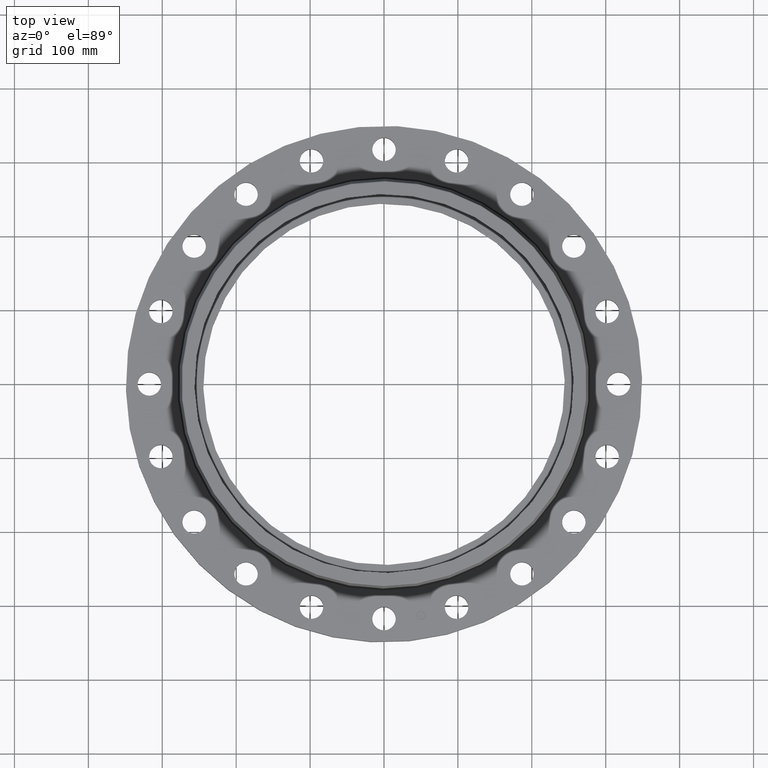
[diagram: clean part render]
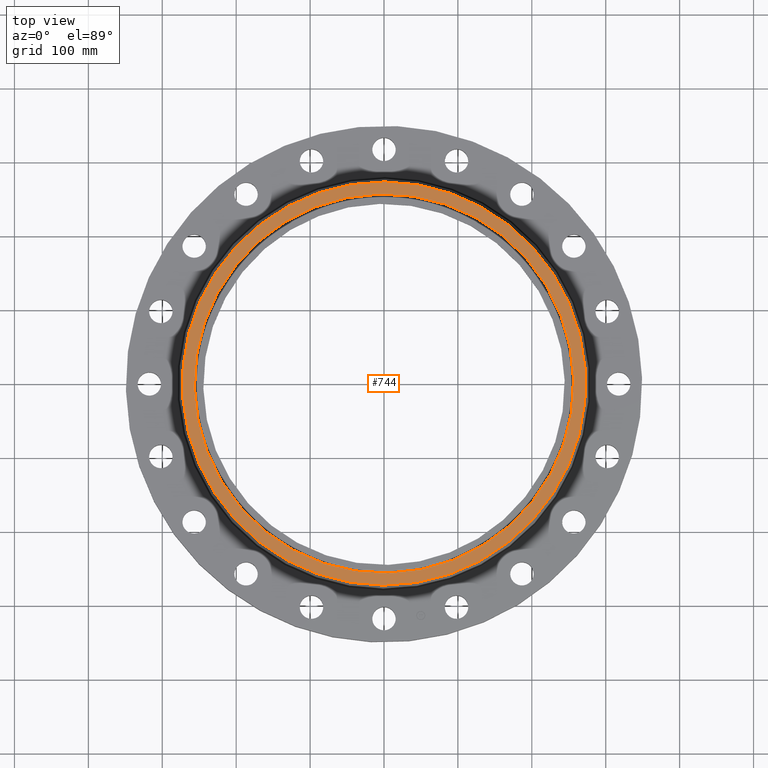
[diagram: same view with one face highlighted and labeled with its STEP entity id]
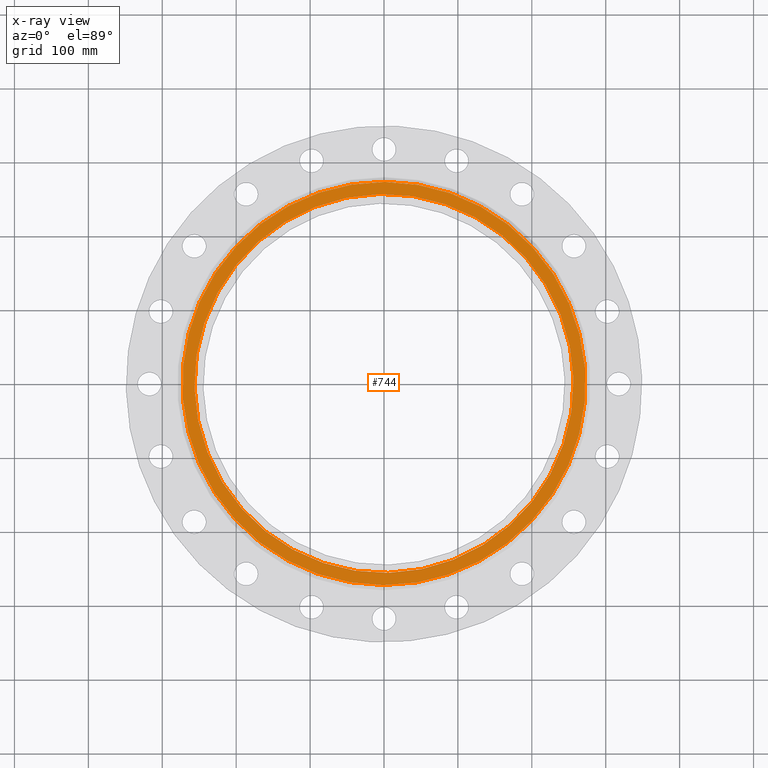
[diagram: x-ray of the same camera — body ghosted, the highlighted face saturated]
A machine part, top view. The second image highlights one B-rep face of the part: STEP entity #744.
The next image is the same camera in x-ray: the body ghosted, the highlighted face saturated — about 0% of this face is hidden behind the body in this view.
In plain terms, the highlighted planar face has unit normal (0, 0, -1).
Its self-contained STEP definition (entity closure, byte-faithful):
#688=AXIS2_PLACEMENT_3D('Circle Axis2P3D',#686,#687,$) ;
#707=AXIS2_PLACEMENT_3D('Circle Axis2P3D',#705,#706,$) ;
#720=AXIS2_PLACEMENT_3D('Plane Axis2P3D',#717,#718,#719) ;
#728=AXIS2_PLACEMENT_3D('Circle Axis2P3D',#726,#727,$) ;
#737=AXIS2_PLACEMENT_3D('Circle Axis2P3D',#735,#736,$) ;
#683=CARTESIAN_POINT('Vertex',(5.14894634445,9.42508306327,2.81000000001)) ;
#686=CARTESIAN_POINT('Axis2P3D Location',(0.,0.,2.81000000001)) ;
#690=CARTESIAN_POINT('Vertex',(-5.14894634445,-9.42508306327,2.81000000001)) ;
#705=CARTESIAN_POINT('Axis2P3D Location',(0.,0.,2.81000000001)) ;
#717=CARTESIAN_POINT('Axis2P3D Location',(0.,10.7398249151,2.81000000001)) ;
#726=CARTESIAN_POINT('Axis2P3D Location',(-5.59482469102E-016,2.23792987641E-015,2.81000000001)) ;
#730=CARTESIAN_POINT('Vertex',(-8.86358387513,4.84219793992,2.81000000001)) ;
#732=CARTESIAN_POINT('Vertex',(8.86358387513,-4.84219793992,2.81000000001)) ;
#735=CARTESIAN_POINT('Axis2P3D Location',(-2.79741234551E-016,0.,2.81000000001)) ;
#687=DIRECTION('Axis2P3D Direction',(0.,0.,-0.0393700787402)) ;
#706=DIRECTION('Axis2P3D Direction',(0.,0.,-0.0393700787402)) ;
#718=DIRECTION('Axis2P3D Direction',(0.,0.,-0.0393700787402)) ;
#719=DIRECTION('Axis2P3D XDirection',(0.0393700787402,0.,0.)) ;
#727=DIRECTION('Axis2P3D Direction',(0.,0.,-0.0393700787402)) ;
#736=DIRECTION('Axis2P3D Direction',(0.,0.,-0.0393700787402)) ;
#723=ORIENTED_EDGE('',*,*,#692,.F.) ;
#724=ORIENTED_EDGE('',*,*,#709,.F.) ;
#741=ORIENTED_EDGE('',*,*,#734,.T.) ;
#742=ORIENTED_EDGE('',*,*,#739,.T.) ;
#743=FACE_BOUND('',#740,.T.) ;
#744=ADVANCED_FACE('PartBody',(#725,#743),#721,.F.) ;
#689=CIRCLE('generated circle',#688,10.7398249151) ;
#708=CIRCLE('generated circle',#707,10.7398249151) ;
#729=CIRCLE('generated circle',#728,10.1) ;
#738=CIRCLE('generated circle',#737,10.1) ;
#692=EDGE_CURVE('',#684,#691,#689,.T.) ;
#709=EDGE_CURVE('',#691,#684,#708,.T.) ;
#734=EDGE_CURVE('',#731,#733,#729,.T.) ;
#739=EDGE_CURVE('',#733,#731,#738,.T.) ;
#722=EDGE_LOOP('',(#723,#724)) ;
#740=EDGE_LOOP('',(#741,#742)) ;
#725=FACE_OUTER_BOUND('',#722,.T.) ;
#721=PLANE('',#720) ;
#684=VERTEX_POINT('',#683) ;
#691=VERTEX_POINT('',#690) ;
#731=VERTEX_POINT('',#730) ;
#733=VERTEX_POINT('',#732) ;